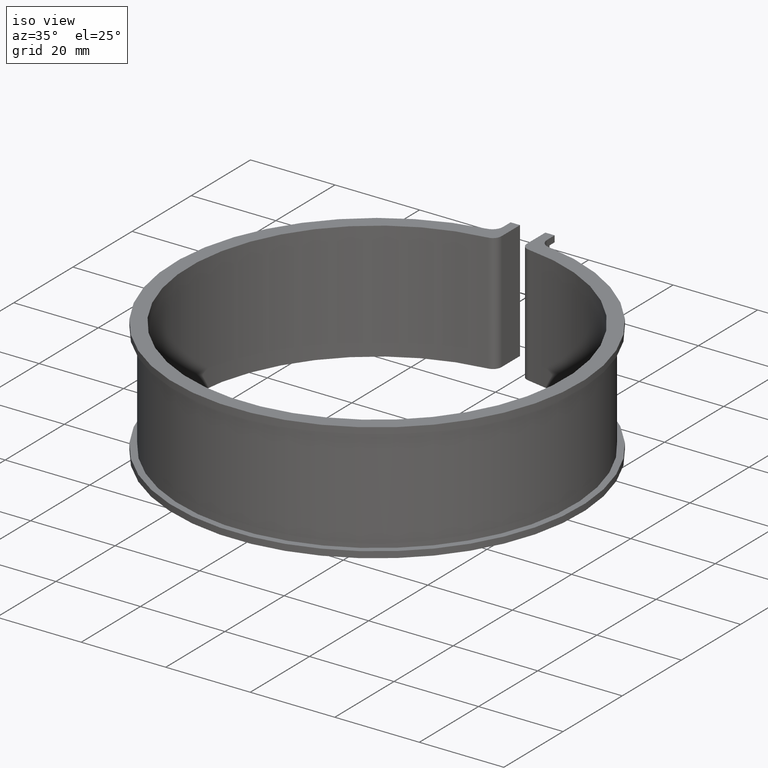
[diagram: clean part render]
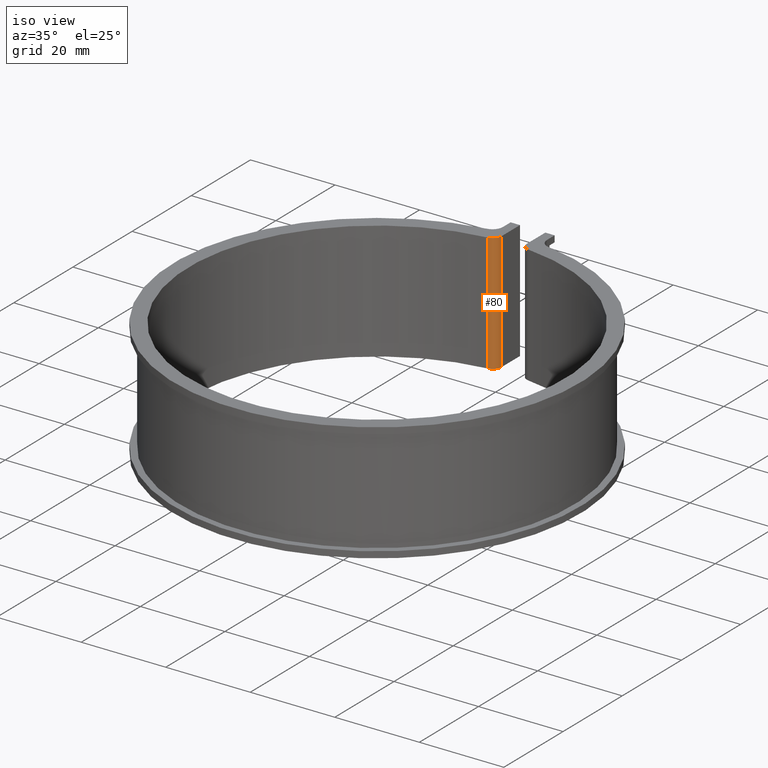
[diagram: same view with one face highlighted and labeled with its STEP entity id]
A machine part, iso view. The second image highlights one B-rep face of the part: STEP entity #80.
In plain terms, the highlighted cylindrical surface (edge-blend (fillet) strip) has radius 2 mm, axis along (0, 0, 1).
Its self-contained STEP definition (entity closure, byte-faithful):
#80 = ADVANCED_FACE( '', ( #112 ), #113, .T. );
#112 = FACE_OUTER_BOUND( '', #164, .T. );
#113 = CYLINDRICAL_SURFACE( '', #165, 2.00000000000000 );
#164 = EDGE_LOOP( '', ( #253, #254, #255, #256 ) );
#165 = AXIS2_PLACEMENT_3D( '', #257, #258, #259 );
#253 = ORIENTED_EDGE( '', *, *, #456, .T. );
#254 = ORIENTED_EDGE( '', *, *, #457, .F. );
#255 = ORIENTED_EDGE( '', *, *, #458, .F. );
#256 = ORIENTED_EDGE( '', *, *, #459, .T. );
#257 = CARTESIAN_POINT( '', ( -4.99999999999933, 46.2806925185871, 14.0000000000000 ) );
#258 = DIRECTION( '', ( 0.000000000000000, 0.000000000000000, 1.00000000000000 ) );
#259 = DIRECTION( '', ( 0.107411385606873, 0.994214662053428, 0.000000000000000 ) );
#456 = EDGE_CURVE( '', #553, #554, #555, .T. );
#457 = EDGE_CURVE( '', #556, #554, #557, .T. );
#458 = EDGE_CURVE( '', #558, #556, #559, .T. );
#459 = EDGE_CURVE( '', #558, #553, #560, .T. );
#553 = VERTEX_POINT( '', #693 );
#554 = VERTEX_POINT( '', #694 );
#555 = CIRCLE( '', #695, 2.00000000000000 );
#556 = VERTEX_POINT( '', #696 );
#557 = LINE( '', #697, #698 );
#558 = VERTEX_POINT( '', #699 );
#559 = CIRCLE( '', #700, 2.00000000000000 );
#560 = LINE( '', #701, #702 );
#693 = CARTESIAN_POINT( '', ( -4.78517722878559, 44.2922631944803, -14.0000000000000 ) );
#694 = CARTESIAN_POINT( '', ( -2.99999999999934, 46.2806925185871, -14.0000000000000 ) );
#695 = AXIS2_PLACEMENT_3D( '', #832, #833, #834 );
#696 = CARTESIAN_POINT( '', ( -2.99999999999934, 46.2806925185871, 14.0000000000000 ) );
#697 = CARTESIAN_POINT( '', ( -2.99999999999934, 46.2806925185871, 14.0000000000000 ) );
#698 = VECTOR( '', #835, 1000.00000000000 );
#699 = CARTESIAN_POINT( '', ( -4.78517722878559, 44.2922631944803, 14.0000000000000 ) );
#700 = AXIS2_PLACEMENT_3D( '', #836, #837, #838 );
#701 = CARTESIAN_POINT( '', ( -4.78517722878559, 44.2922631944803, 14.0000000000000 ) );
#702 = VECTOR( '', #839, 1000.00000000000 );
#832 = CARTESIAN_POINT( '', ( -4.99999999999933, 46.2806925185871, -14.0000000000000 ) );
#833 = DIRECTION( '', ( 0.000000000000000, 0.000000000000000, 1.00000000000000 ) );
#834 = DIRECTION( '', ( 1.00000000000000, 1.34614541735800E-015, 0.000000000000000 ) );
#835 = DIRECTION( '', ( 0.000000000000000, 0.000000000000000, -1.00000000000000 ) );
#836 = CARTESIAN_POINT( '', ( -4.99999999999933, 46.2806925185871, 14.0000000000000 ) );
#837 = DIRECTION( '', ( 0.000000000000000, 0.000000000000000, 1.00000000000000 ) );
#838 = DIRECTION( '', ( 1.00000000000000, 1.34614541735800E-015, 0.000000000000000 ) );
#839 = DIRECTION( '', ( 0.000000000000000, 0.000000000000000, -1.00000000000000 ) );